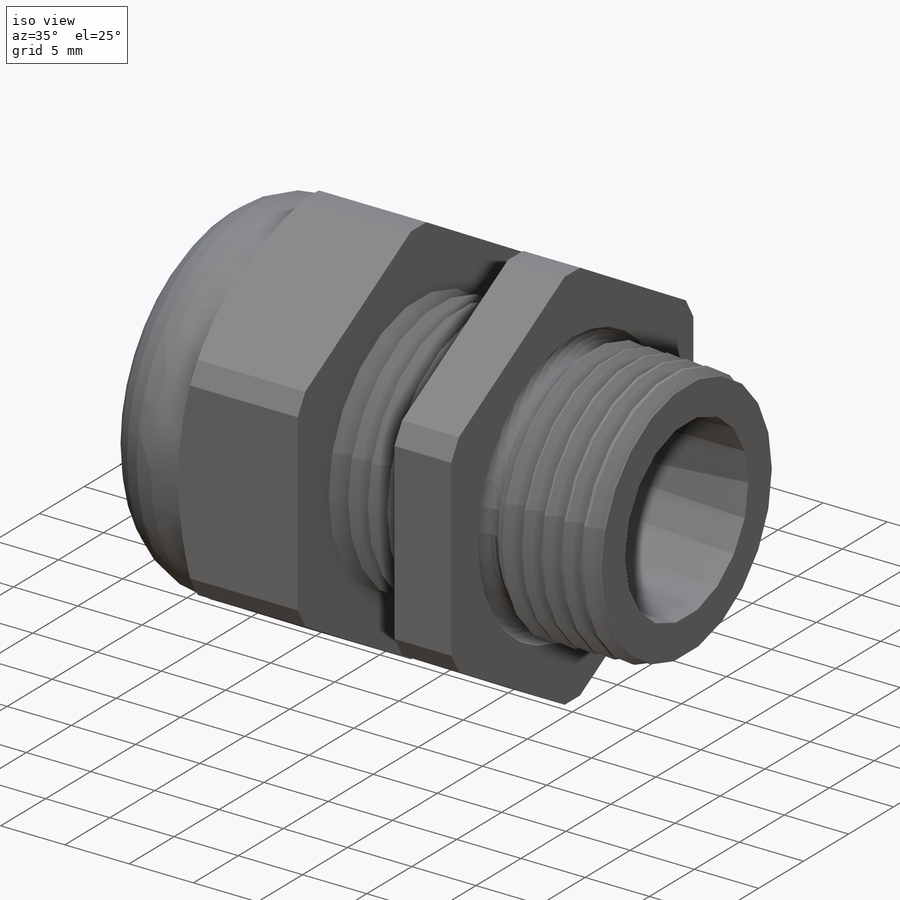
[diagram: iso view]
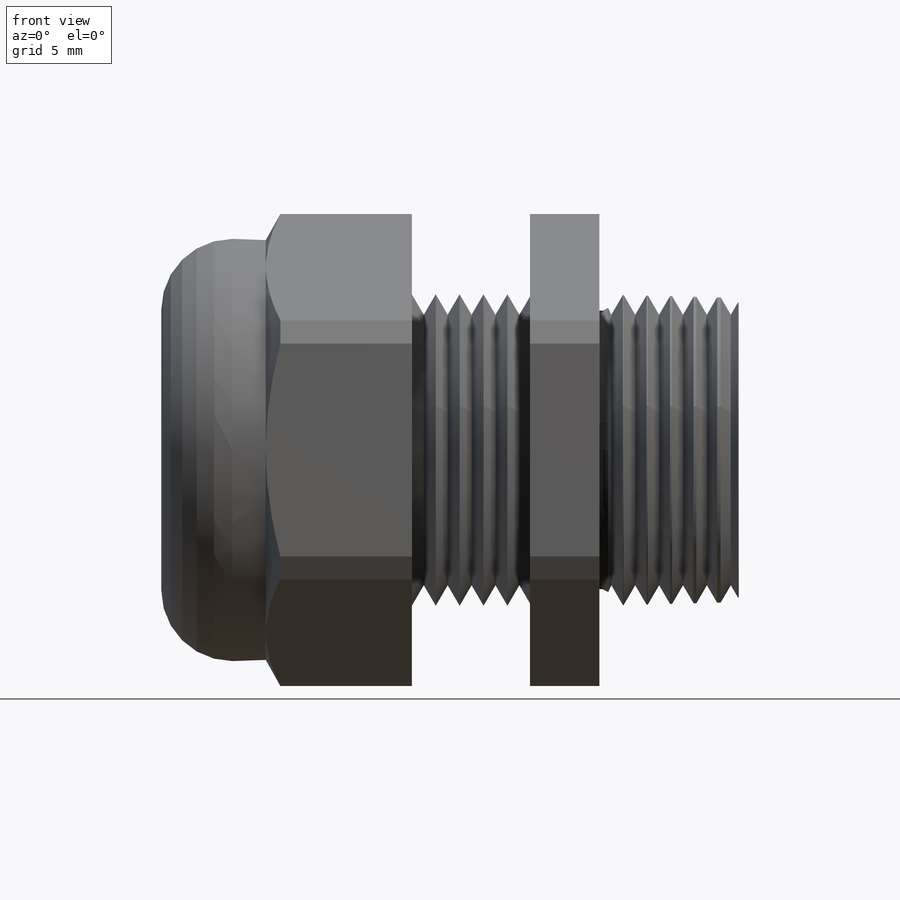
[diagram: front view]
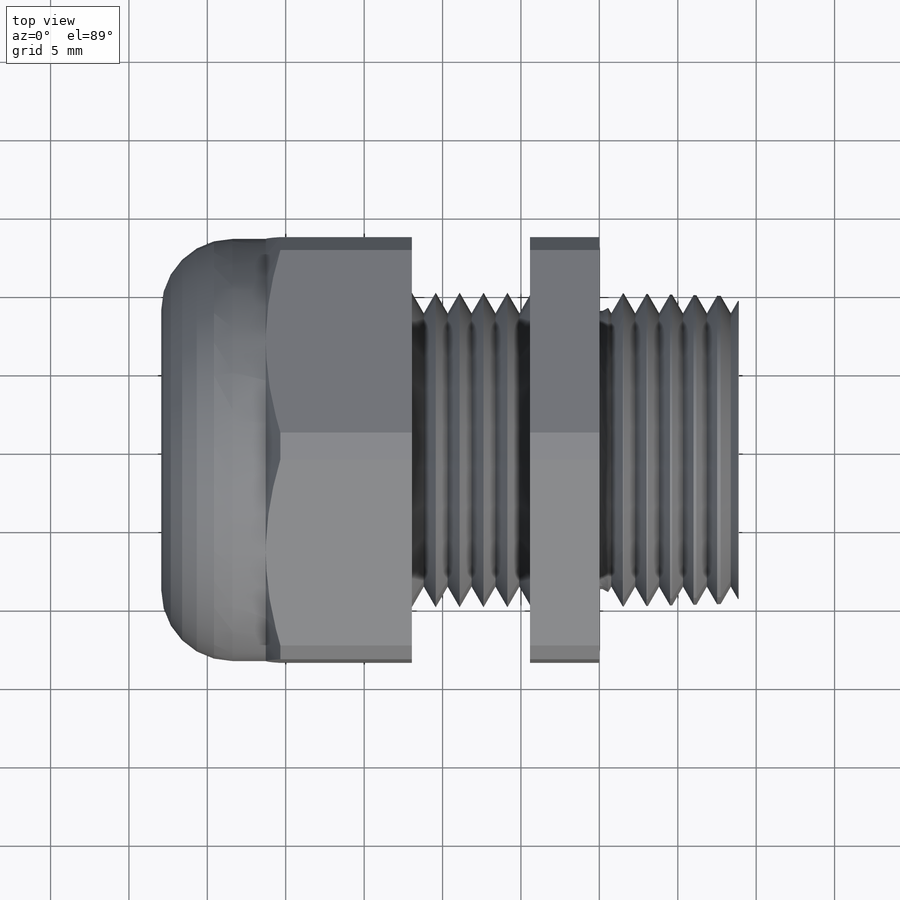
[diagram: top view]
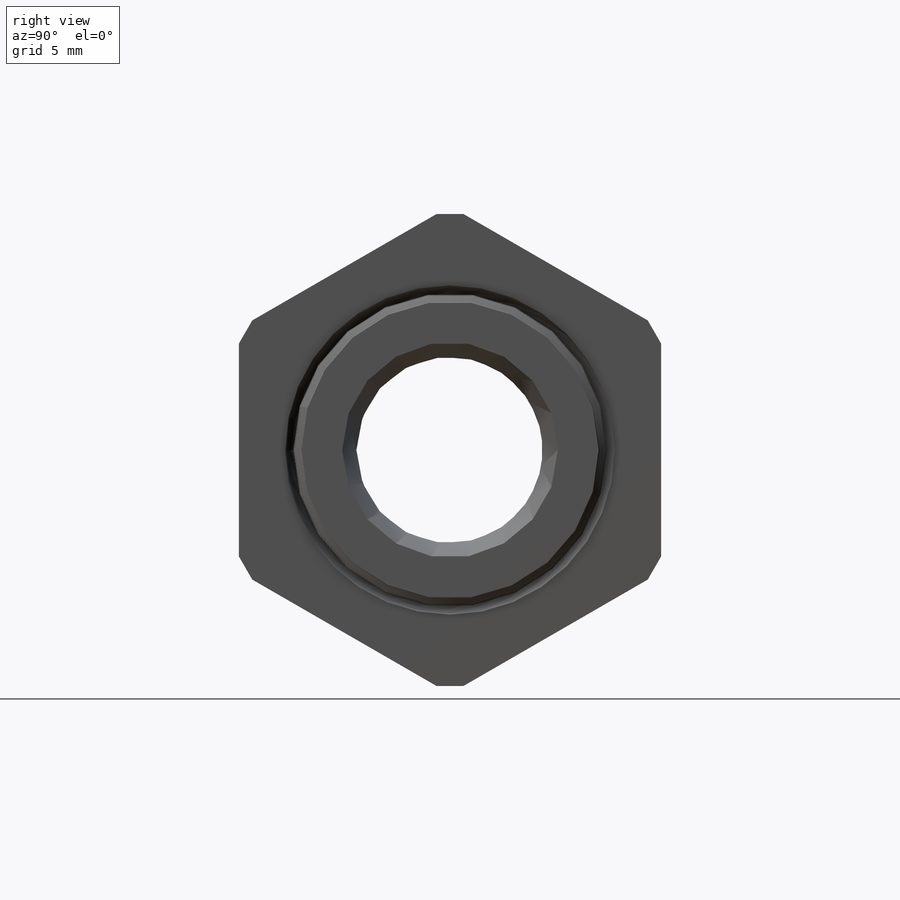
[diagram: right view]
SOLIDWORKS PART (.sldprt)
format: sldprt  version: not decoded by parser v0  size: 496,128 bytes
history: native  units: mm
features: sketch x14, revolve x5, cut_revolve x3, cut_extrude x2, fillet x2, pattern_linear x2, extrude x2, material x1, chamfer x1, helix x1, plane x1, sweep x1 (+13 scaffold rows collapsed)
feature tree (48):
  scaffold x13  (default folders/planes/origin — collapsed)
  material  "Material <not specified>"
  sketch  "Sketch1"  dims[c1.D1=5.08mm c1.NPT=20.066mm c1.NutWidth1=~4.422886mm c1.D4=~7.312015mm c2.D4=~95.974323deg c3.D4=~7.312015mm c3.angle=1.5deg c3.D5=~20.225671mm c3.D6=~2.114041mm c4.D5=~15.850235mm c4.D1=6.35mm c4.D6=5.08mm c5.D1=6.35mm c5.D6=~2.114041mm c5.D5=7.874mm c5.D=8.89mm c6.D5=12.7mm c6.WF+=~30.15488mm c6.CableDia=11.938mm c6.D8=~6.223041mm c6.NutWidth2=~9.313333mm c7.D8=15.24mm c7.A=20.066mm c7.B=27.94mm c7.B-D=21.2725mm c7.D1=17.0561mm c7.D2=~44.782147mm c8.D2=2.5deg c8.D3=~5.402792mm]
  revolve  "Revolve1"  Angle=360deg
  sketch  "Sketch2"  dims[wrechflats=26.924mm]
  cut_extrude  "Cut-Extrude1"  [1 undecoded]
  chamfer  "Chamfer1"  Distance=0.3175mm Angle=45deg
  sketch  "Sketch3"
  cut_extrude  "Cut-Extrude2"  [1 undecoded]
  sketch  "Sketch14"
  revolve  "Revolve4"  Angle=360deg
  fillet  "Fillet1"  Radius=4.53644mm r1=4.53644mm
  sketch  "Sketch9"  dims[c1.D1=~0.491787mm c1.D2=0.508mm c1.D3=0.508mm c2.D2=0.254mm c2.D1=0.762mm c2.D3=1.1938mm c3.D2=1.27mm]
  revolve  "Revolve3"  Angle=360deg
  sketch  "Sketch16"  dims[D2=0.254mm D1=0.762mm]
  revolve  "Revolve5"  Angle=360deg
  sketch  "Sketch10"  dims[c1.D1=0.254mm c1.D2=0.254mm c2.D1=~0.401139mm c3.D1=60.0deg c3.D2=~0.401139mm c4.D2=30.0deg c4.H=~1.319822mm]
  cut_revolve  "Cut-Revolve1"  Angle=360deg
  pattern_linear  "LPattern1"  Count1=5 Count2=1 Spacing1=1.524mm Spacing2=50mm Number=5 Dist=1.524mm
  sketch  "Sketch13"  dims[c1.D1=~0.873909mm c2.D1=60.0deg c2.D2=~0.942464mm c3.D2=30.0deg c3.D3=~1.319822mm]
  cut_revolve  "Cut-Revolve2"  Angle=360deg
  pattern_linear  "LPattern2"  Count1=6 Count2=1 Spacing1=1.524mm Spacing2=50mm
  sketch  "Sketch4"  dims[c1.C=~91.06916mm c1.D1=~38.903174mm c2.D1=1.5deg c2.D2=6.35mm c3.D1=~28.178308mm c4.D1=1.0deg c4.D2=2.54mm]
  revolve  "Revolve2"  Angle=360deg
  sketch  "Sketch5"  dims[D1=0.0mm]
  helix  "Helix/Spiral2"  Pitch=32.654461mm rev=6.066667 tapper=2deg
  plane  "Plane1"
  sketch  "Sketch6"  dims[c1.D1=~1.526035mm c2.D1=95.0deg c2.D2=2.54mm c2.D3=~4.553458mm]
  sweep  "Cut-Sweep1"
  sketch  "Sketch7"  dims[D1=0.0mm]
  extrude  "Extrude1"  [1 undecoded]
  sketch  "Sketch8"
  extrude  "Extrude2"  Depth=9.00684mm
  fillet  "Fillet2"  Radius=0.254mm
  sketch  "Sketch15"  dims[D1=1.651mm D2=~0.359301mm]
  cut_revolve  "Cut-Revolve3"  Angle=360deg
decode coverage: 26 of 33 modeling features carry decoded parameters
note: ~ marks probable driven/reference dimensions
note: 3 parameter values undecoded
summary: no parameter record found for 3 features
note: suppression state not decoded; provenance and decode notes live in map.json
